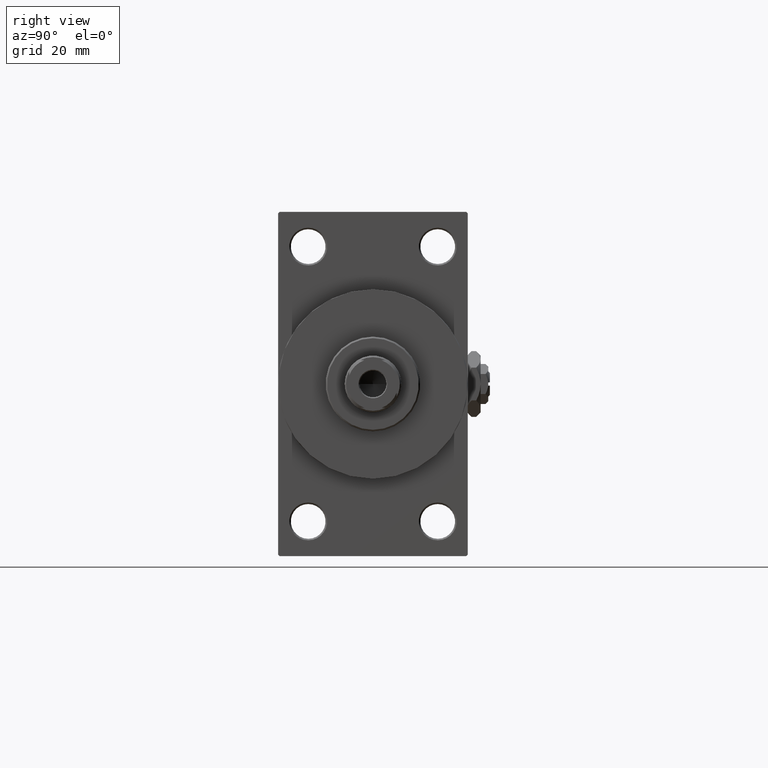
[diagram: clean part render]
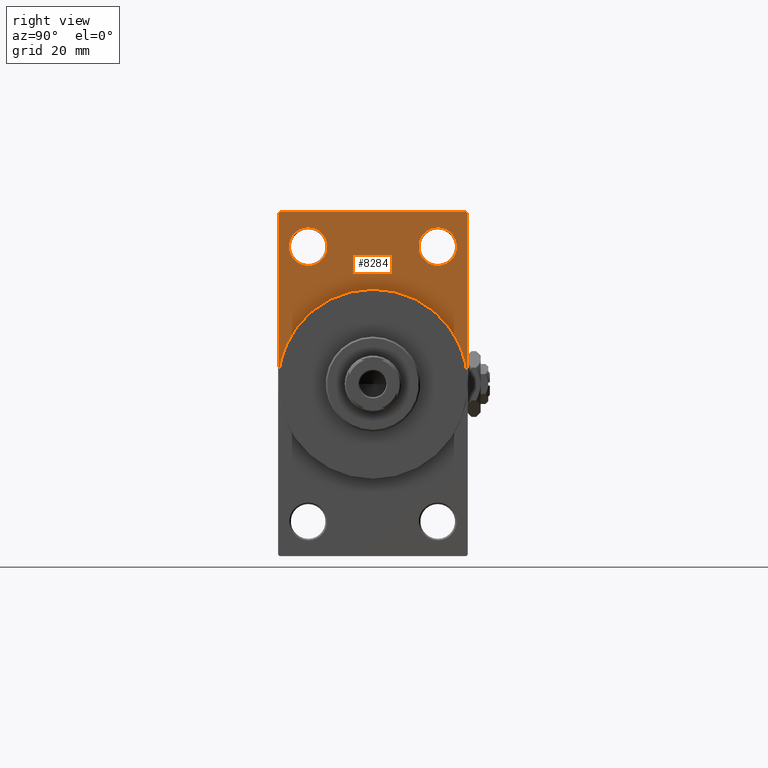
[diagram: same view with one face highlighted and labeled with its STEP entity id]
A machine part, right view. The second image highlights one B-rep face of the part: STEP entity #8284.
In plain terms, the highlighted planar face has unit normal (-1, 0, 0).
Its self-contained STEP definition (entity closure, byte-faithful):
#454 = CARTESIAN_POINT ( 'NONE',  ( 146.0000000000000284, -30.00000000000000000, 53.99999999999997158 ) ) ;
#1466 = VECTOR ( 'NONE', #40168, 1000.000000000000000 ) ;
#2071 = CARTESIAN_POINT ( 'NONE',  ( 146.0000000000000284, -20.50000000000000000, 49.50000000000019895 ) ) ;
#2306 = CARTESIAN_POINT ( 'NONE',  ( 146.0000000000000284, -20.50000000000000000, 43.50000000000000000 ) ) ;
#3820 = VERTEX_POINT ( 'NONE', #43011 ) ;
#4473 = CARTESIAN_POINT ( 'NONE',  ( 146.0000000000000284, 20.50000000000000000, 49.50000000000019895 ) ) ;
#5014 = AXIS2_PLACEMENT_3D ( 'NONE', #39493, #9568, #5338 ) ;
#5338 = DIRECTION ( 'NONE',  ( 0.000000000000000000, 0.000000000000000000, 1.000000000000000000 ) ) ;
#5804 = DIRECTION ( 'NONE',  ( -1.000000000000000000, 0.000000000000000000, -0.000000000000000000 ) ) ;
#6044 = DIRECTION ( 'NONE',  ( 0.000000000000000000, 0.000000000000000000, 1.000000000000000000 ) ) ;
#6171 = VERTEX_POINT ( 'NONE', #10010 ) ;
#7255 = ORIENTED_EDGE ( 'NONE', *, *, #44932, .T. ) ;
#7321 = CARTESIAN_POINT ( 'NONE',  ( 146.0000000000000284, -30.00000000000000000, 0.000000000000000000 ) ) ;
#8095 = DIRECTION ( 'NONE',  ( 0.000000000000000000, 0.000000000000000000, -1.000000000000000000 ) ) ;
#8284 = ADVANCED_FACE ( 'NONE', ( #20177, #46847, #28671 ), #13690, .F. ) ;
#9094 = DIRECTION ( 'NONE',  ( 0.000000000000000000, 0.000000000000000000, 1.000000000000000000 ) ) ;
#9311 = EDGE_CURVE ( 'NONE', #18938, #48557, #34607, .T. ) ;
#9568 = DIRECTION ( 'NONE',  ( -1.000000000000000000, 0.000000000000000000, -0.000000000000000000 ) ) ;
#9721 = ORIENTED_EDGE ( 'NONE', *, *, #12375, .T. ) ;
#10010 = CARTESIAN_POINT ( 'NONE',  ( 146.0000000000000284, 20.50000000000000000, 37.49999999999979394 ) ) ;
#10431 = ORIENTED_EDGE ( 'NONE', *, *, #49177, .T. ) ;
#12005 = VECTOR ( 'NONE', #36505, 1000.000000000000000 ) ;
#12375 = EDGE_CURVE ( 'NONE', #6171, #29734, #39264, .T. ) ;
#12588 = DIRECTION ( 'NONE',  ( -1.000000000000000000, 0.000000000000000000, -0.000000000000000000 ) ) ;
#13432 = VERTEX_POINT ( 'NONE', #33386 ) ;
#13690 = PLANE ( 'NONE',  #16919 ) ;
#13924 = CIRCLE ( 'NONE', #37813, 6.000000000000199840 ) ;
#14307 = VERTEX_POINT ( 'NONE', #35903 ) ;
#15557 = ORIENTED_EDGE ( 'NONE', *, *, #24048, .F. ) ;
#15649 = DIRECTION ( 'NONE',  ( -0.000000000000000000, -0.7071067811865451302, -0.7071067811865500152 ) ) ;
#16919 = AXIS2_PLACEMENT_3D ( 'NONE', #39886, #24164, #24419 ) ;
#17110 = EDGE_CURVE ( 'NONE', #29734, #6171, #13924, .T. ) ;
#17214 = CARTESIAN_POINT ( 'NONE',  ( 146.0000000000000284, 29.99999999999999645, 54.49999999999999289 ) ) ;
#17764 = CARTESIAN_POINT ( 'NONE',  ( 146.0000000000000284, 30.00000000000000000, 0.000000000000000000 ) ) ;
#18793 = CIRCLE ( 'NONE', #34728, 6.000000000000199840 ) ;
#18938 = VERTEX_POINT ( 'NONE', #23989 ) ;
#19620 = EDGE_LOOP ( 'NONE', ( #39992, #44706, #31279, #41418, #15557, #28998, #45265 ) ) ;
#20177 = FACE_BOUND ( 'NONE', #36804, .T. ) ;
#20427 = AXIS2_PLACEMENT_3D ( 'NONE', #33661, #41140, #33415 ) ;
#20771 = VERTEX_POINT ( 'NONE', #2071 ) ;
#21300 = CARTESIAN_POINT ( 'NONE',  ( 146.0000000000000284, 29.49999999999999645, 54.49999999999999289 ) ) ;
#21466 = LINE ( 'NONE', #17214, #1466 ) ;
#22042 = VECTOR ( 'NONE', #39773, 1000.000000000000000 ) ;
#22146 = AXIS2_PLACEMENT_3D ( 'NONE', #2306, #5804, #6044 ) ;
#22574 = CARTESIAN_POINT ( 'NONE',  ( 146.0000000000000284, -20.50000000000000000, 43.50000000000000000 ) ) ;
#23726 = VERTEX_POINT ( 'NONE', #17764 ) ;
#23989 = CARTESIAN_POINT ( 'NONE',  ( 146.0000000000000284, -29.49999999999997513, 54.50000000000000000 ) ) ;
#24048 = EDGE_CURVE ( 'NONE', #23726, #14307, #36349, .T. ) ;
#24106 = VECTOR ( 'NONE', #15649, 1000.000000000000114 ) ;
#24164 = DIRECTION ( 'NONE',  ( -1.000000000000000000, 0.000000000000000000, -0.000000000000000000 ) ) ;
#24285 = LINE ( 'NONE', #21300, #12005 ) ;
#24419 = DIRECTION ( 'NONE',  ( -0.000000000000000000, 0.000000000000000000, 1.000000000000000000 ) ) ;
#24562 = CARTESIAN_POINT ( 'NONE',  ( 146.0000000000000284, 29.99999999999999645, 54.49999999999999289 ) ) ;
#25667 = CARTESIAN_POINT ( 'NONE',  ( 146.0000000000000284, -30.00000000000000000, 53.99999999999997158 ) ) ;
#27689 = EDGE_LOOP ( 'NONE', ( #9721, #44139 ) ) ;
#28671 = FACE_OUTER_BOUND ( 'NONE', #19620, .T. ) ;
#28687 = EDGE_CURVE ( 'NONE', #44096, #18938, #21466, .T. ) ;
#28998 = ORIENTED_EDGE ( 'NONE', *, *, #42167, .F. ) ;
#29734 = VERTEX_POINT ( 'NONE', #4473 ) ;
#29875 = CARTESIAN_POINT ( 'NONE',  ( 146.0000000000000284, 29.49999999999999645, 54.49999999999999289 ) ) ;
#31279 = ORIENTED_EDGE ( 'NONE', *, *, #41967, .T. ) ;
#31773 = EDGE_CURVE ( 'NONE', #14307, #46081, #46146, .T. ) ;
#32044 = CARTESIAN_POINT ( 'NONE',  ( 146.0000000000000284, 20.50000000000000000, 43.50000000000000000 ) ) ;
#33386 = CARTESIAN_POINT ( 'NONE',  ( 146.0000000000000284, -20.50000000000000000, 37.49999999999979394 ) ) ;
#33415 = DIRECTION ( 'NONE',  ( 0.000000000000000000, 0.000000000000000000, -1.000000000000000000 ) ) ;
#33661 = CARTESIAN_POINT ( 'NONE',  ( 146.0000000000000284, 0.000000000000000000, 0.000000000000000000 ) ) ;
#34607 = LINE ( 'NONE', #454, #24106 ) ;
#34728 = AXIS2_PLACEMENT_3D ( 'NONE', #22574, #38025, #42003 ) ;
#35285 = LINE ( 'NONE', #24562, #22042 ) ;
#35500 = CARTESIAN_POINT ( 'NONE',  ( 146.0000000000000284, 0.000000000000000000, 0.000000000000000000 ) ) ;
#35903 = CARTESIAN_POINT ( 'NONE',  ( 146.0000000000000284, 0.000000000000000000, 30.00000000000000000 ) ) ;
#36349 = CIRCLE ( 'NONE', #20427, 30.00000000000000000 ) ;
#36505 = DIRECTION ( 'NONE',  ( 0.000000000000000000, -0.7071067811865279218, 0.7071067811865672237 ) ) ;
#36804 = EDGE_LOOP ( 'NONE', ( #10431, #7255 ) ) ;
#37352 = EDGE_CURVE ( 'NONE', #3820, #44096, #24285, .T. ) ;
#37813 = AXIS2_PLACEMENT_3D ( 'NONE', #32044, #12588, #9094 ) ;
#38025 = DIRECTION ( 'NONE',  ( -1.000000000000000000, 0.000000000000000000, -0.000000000000000000 ) ) ;
#39264 = CIRCLE ( 'NONE', #5014, 6.000000000000199840 ) ;
#39493 = CARTESIAN_POINT ( 'NONE',  ( 146.0000000000000284, 20.50000000000000000, 43.50000000000000000 ) ) ;
#39773 = DIRECTION ( 'NONE',  ( 0.000000000000000000, 0.000000000000000000, -1.000000000000000000 ) ) ;
#39886 = CARTESIAN_POINT ( 'NONE',  ( 146.0000000000000284, 0.000000000000000000, 0.000000000000000000 ) ) ;
#39992 = ORIENTED_EDGE ( 'NONE', *, *, #28687, .T. ) ;
#40168 = DIRECTION ( 'NONE',  ( 0.000000000000000000, -1.000000000000000000, 1.156482317317871478E-16 ) ) ;
#41140 = DIRECTION ( 'NONE',  ( 1.000000000000000000, 0.000000000000000000, 0.000000000000000000 ) ) ;
#41418 = ORIENTED_EDGE ( 'NONE', *, *, #31773, .F. ) ;
#41967 = EDGE_CURVE ( 'NONE', #48557, #46081, #44556, .T. ) ;
#42003 = DIRECTION ( 'NONE',  ( 0.000000000000000000, 0.000000000000000000, 1.000000000000000000 ) ) ;
#42167 = EDGE_CURVE ( 'NONE', #3820, #23726, #35285, .T. ) ;
#42484 = DIRECTION ( 'NONE',  ( 1.000000000000000000, 0.000000000000000000, 0.000000000000000000 ) ) ;
#43011 = CARTESIAN_POINT ( 'NONE',  ( 146.0000000000000284, 29.99999999999999645, 53.99999999999996447 ) ) ;
#43776 = AXIS2_PLACEMENT_3D ( 'NONE', #35500, #42484, #8095 ) ;
#44059 = CARTESIAN_POINT ( 'NONE',  ( 146.0000000000000284, -30.00000000000000000, 54.50000000000000000 ) ) ;
#44096 = VERTEX_POINT ( 'NONE', #29875 ) ;
#44139 = ORIENTED_EDGE ( 'NONE', *, *, #17110, .T. ) ;
#44308 = VECTOR ( 'NONE', #48555, 1000.000000000000000 ) ;
#44414 = CIRCLE ( 'NONE', #22146, 6.000000000000199840 ) ;
#44556 = LINE ( 'NONE', #44059, #44308 ) ;
#44706 = ORIENTED_EDGE ( 'NONE', *, *, #9311, .T. ) ;
#44932 = EDGE_CURVE ( 'NONE', #20771, #13432, #18793, .T. ) ;
#45265 = ORIENTED_EDGE ( 'NONE', *, *, #37352, .T. ) ;
#46081 = VERTEX_POINT ( 'NONE', #7321 ) ;
#46146 = CIRCLE ( 'NONE', #43776, 30.00000000000000000 ) ;
#46847 = FACE_BOUND ( 'NONE', #27689, .T. ) ;
#48555 = DIRECTION ( 'NONE',  ( 0.000000000000000000, 0.000000000000000000, -1.000000000000000000 ) ) ;
#48557 = VERTEX_POINT ( 'NONE', #25667 ) ;
#49177 = EDGE_CURVE ( 'NONE', #13432, #20771, #44414, .T. ) ;